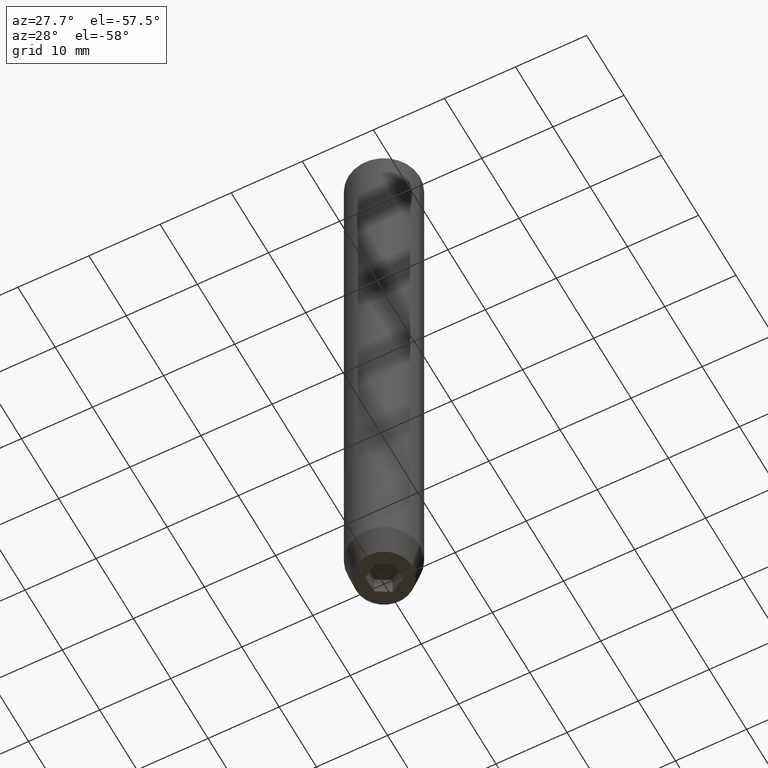
[diagram: clean part render]
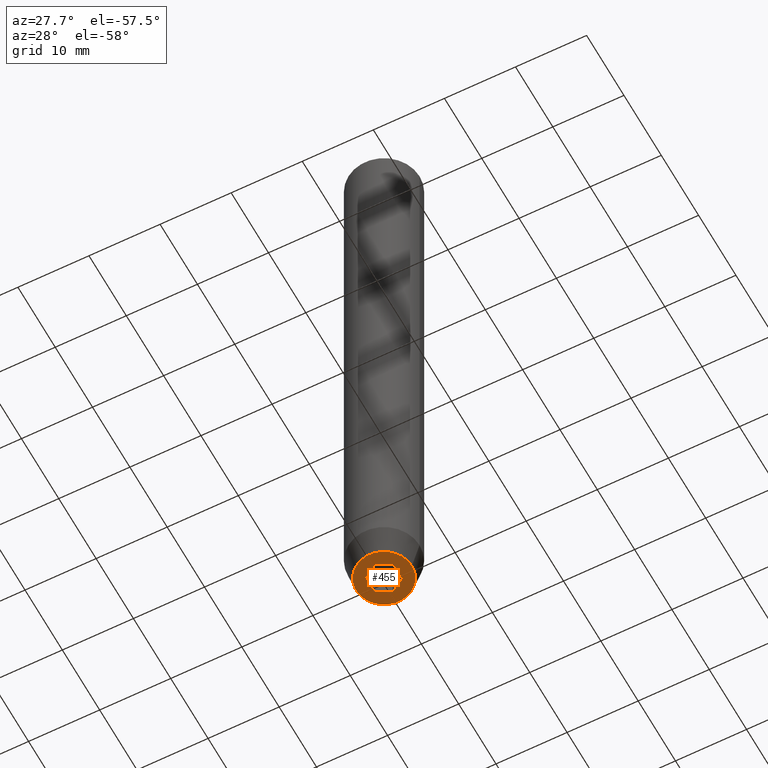
[diagram: same view with one face highlighted and labeled with its STEP entity id]
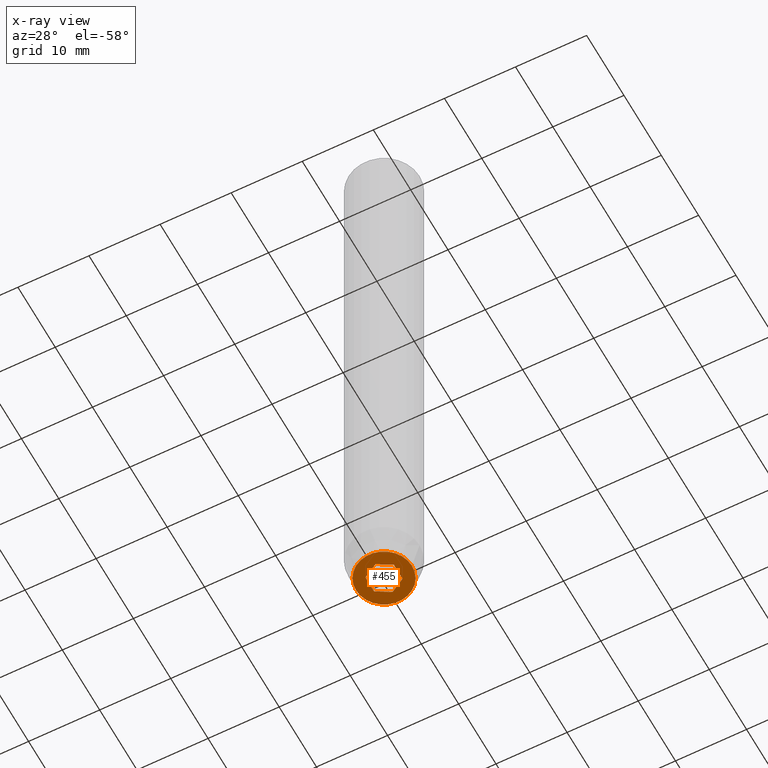
[diagram: x-ray of the same camera — body ghosted, the highlighted face saturated]
A machine part, auxiliary view. The second image highlights one B-rep face of the part: STEP entity #455.
The next image is the same camera in x-ray: the body ghosted, the highlighted face saturated — about 0% of this face is hidden behind the body in this view.
In plain terms, the highlighted planar face has unit normal (0, 0, -1).
Its self-contained STEP definition (entity closure, byte-faithful):
#7 = DIRECTION ( 'NONE',  ( 5.633679745264339711E-16, 1.000000000000000000, 0.000000000000000000 ) ) ;
#16 = CARTESIAN_POINT ( 'NONE',  ( 2.000000000000000888, 0.000000000000000000, -90.00000000000000000 ) ) ;
#20 = LINE ( 'NONE', #215, #484 ) ;
#26 = EDGE_CURVE ( 'NONE', #503, #388, #132, .T. ) ;
#38 = CARTESIAN_POINT ( 'NONE',  ( -1.000000000000000444, 1.732050807568877637, -90.00000000000000000 ) ) ;
#42 = CARTESIAN_POINT ( 'NONE',  ( -3.928203230275506996, 5.466947754046979141E-16, -90.00000000000000000 ) ) ;
#59 = VERTEX_POINT ( 'NONE', #81 ) ;
#75 = DIRECTION ( 'NONE',  ( -0.000000000000000000, -0.000000000000000000, 1.000000000000000000 ) ) ;
#78 = LINE ( 'NONE', #395, #122 ) ;
#81 = CARTESIAN_POINT ( 'NONE',  ( -1.999999999999998668, -1.154700538379252572, -90.00000000000000000 ) ) ;
#87 = CARTESIAN_POINT ( 'NONE',  ( -1.999999999999997780, 1.154700538379253238, -90.00000000000000000 ) ) ;
#89 = VERTEX_POINT ( 'NONE', #87 ) ;
#102 = VECTOR ( 'NONE', #337, 1000.000000000000000 ) ;
#108 = VERTEX_POINT ( 'NONE', #485 ) ;
#112 = VECTOR ( 'NONE', #7, 1000.000000000000000 ) ;
#113 = PLANE ( 'NONE',  #443 ) ;
#116 = ORIENTED_EDGE ( 'NONE', *, *, #311, .F. ) ;
#118 = FACE_OUTER_BOUND ( 'NONE', #339, .T. ) ;
#122 = VECTOR ( 'NONE', #178, 1000.000000000000000 ) ;
#132 = LINE ( 'NONE', #361, #366 ) ;
#150 = DIRECTION ( 'NONE',  ( 1.000000000000000000, 0.000000000000000000, 0.000000000000000000 ) ) ;
#157 = VERTEX_POINT ( 'NONE', #363 ) ;
#160 = CARTESIAN_POINT ( 'NONE',  ( 0.000000000000000000, 0.000000000000000000, -90.00000000000000000 ) ) ;
#165 = CIRCLE ( 'NONE', #281, 3.928203230275506996 ) ;
#177 = DIRECTION ( 'NONE',  ( -0.8660254037844388186, -0.4999999999999996114, 0.000000000000000000 ) ) ;
#178 = DIRECTION ( 'NONE',  ( 0.8660254037844385966, -0.5000000000000001110, 0.000000000000000000 ) ) ;
#180 = EDGE_CURVE ( 'NONE', #59, #89, #371, .T. ) ;
#186 = CIRCLE ( 'NONE', #430, 3.928203230275506996 ) ;
#197 = DIRECTION ( 'NONE',  ( 0.000000000000000000, 0.000000000000000000, -1.000000000000000000 ) ) ;
#202 = ORIENTED_EDGE ( 'NONE', *, *, #539, .F. ) ;
#203 = DIRECTION ( 'NONE',  ( 1.000000000000000000, 0.000000000000000000, 0.000000000000000000 ) ) ;
#206 = DIRECTION ( 'NONE',  ( -0.000000000000000000, -0.000000000000000000, 1.000000000000000000 ) ) ;
#215 = CARTESIAN_POINT ( 'NONE',  ( -1.000000000000000222, -1.732050807568877637, -90.00000000000000000 ) ) ;
#233 = LINE ( 'NONE', #16, #102 ) ;
#235 = VERTEX_POINT ( 'NONE', #285 ) ;
#250 = CARTESIAN_POINT ( 'NONE',  ( 0.000000000000000000, 3.928203230275506996, -90.00000000000000000 ) ) ;
#265 = DIRECTION ( 'NONE',  ( 0.8660254037844385966, 0.5000000000000001110, 0.000000000000000000 ) ) ;
#274 = CARTESIAN_POINT ( 'NONE',  ( 2.168404344971008868E-16, -2.309401076758503812, -90.00000000000000000 ) ) ;
#281 = AXIS2_PLACEMENT_3D ( 'NONE', #160, #75, #203 ) ;
#285 = CARTESIAN_POINT ( 'NONE',  ( 0.000000000000000000, 2.309401076758503812, -90.00000000000000000 ) ) ;
#288 = ORIENTED_EDGE ( 'NONE', *, *, #26, .F. ) ;
#296 = FACE_BOUND ( 'NONE', #473, .T. ) ;
#302 = ORIENTED_EDGE ( 'NONE', *, *, #180, .F. ) ;
#310 = ORIENTED_EDGE ( 'NONE', *, *, #331, .F. ) ;
#311 = EDGE_CURVE ( 'NONE', #89, #235, #359, .T. ) ;
#331 = EDGE_CURVE ( 'NONE', #235, #108, #78, .T. ) ;
#337 = DIRECTION ( 'NONE',  ( 0.000000000000000000, -1.000000000000000000, 0.000000000000000000 ) ) ;
#339 = EDGE_LOOP ( 'NONE', ( #493, #413 ) ) ;
#341 = ORIENTED_EDGE ( 'NONE', *, *, #415, .F. ) ;
#346 = VECTOR ( 'NONE', #265, 1000.000000000000000 ) ;
#359 = LINE ( 'NONE', #38, #346 ) ;
#361 = CARTESIAN_POINT ( 'NONE',  ( 0.9999999999999997780, -1.732050807568878747, -90.00000000000000000 ) ) ;
#363 = CARTESIAN_POINT ( 'NONE',  ( 3.928203230275506996, 0.000000000000000000, -90.00000000000000000 ) ) ;
#366 = VECTOR ( 'NONE', #177, 1000.000000000000114 ) ;
#371 = LINE ( 'NONE', #542, #112 ) ;
#385 = VERTEX_POINT ( 'NONE', #42 ) ;
#386 = DIRECTION ( 'NONE',  ( -1.000000000000000000, 0.000000000000000000, -0.000000000000000000 ) ) ;
#388 = VERTEX_POINT ( 'NONE', #274 ) ;
#395 = CARTESIAN_POINT ( 'NONE',  ( 1.000000000000000444, 1.732050807568877637, -90.00000000000000000 ) ) ;
#413 = ORIENTED_EDGE ( 'NONE', *, *, #439, .F. ) ;
#415 = EDGE_CURVE ( 'NONE', #108, #503, #233, .T. ) ;
#428 = CARTESIAN_POINT ( 'NONE',  ( 0.000000000000000000, 0.000000000000000000, -90.00000000000000000 ) ) ;
#430 = AXIS2_PLACEMENT_3D ( 'NONE', #428, #206, #150 ) ;
#439 = EDGE_CURVE ( 'NONE', #385, #157, #165, .T. ) ;
#443 = AXIS2_PLACEMENT_3D ( 'NONE', #250, #197, #386 ) ;
#455 = ADVANCED_FACE ( 'NONE', ( #296, #118 ), #113, .T. ) ;
#470 = CARTESIAN_POINT ( 'NONE',  ( 2.000000000000000888, -1.154700538379252572, -90.00000000000000000 ) ) ;
#473 = EDGE_LOOP ( 'NONE', ( #116, #302, #202, #288, #341, #310 ) ) ;
#484 = VECTOR ( 'NONE', #530, 999.9999999999998863 ) ;
#485 = CARTESIAN_POINT ( 'NONE',  ( 2.000000000000000888, 1.154700538379251462, -90.00000000000000000 ) ) ;
#493 = ORIENTED_EDGE ( 'NONE', *, *, #497, .F. ) ;
#497 = EDGE_CURVE ( 'NONE', #157, #385, #186, .T. ) ;
#503 = VERTEX_POINT ( 'NONE', #470 ) ;
#530 = DIRECTION ( 'NONE',  ( -0.8660254037844387076, 0.5000000000000001110, 0.000000000000000000 ) ) ;
#539 = EDGE_CURVE ( 'NONE', #388, #59, #20, .T. ) ;
#542 = CARTESIAN_POINT ( 'NONE',  ( -1.999999999999998224, 1.126735949052866956E-15, -90.00000000000000000 ) ) ;